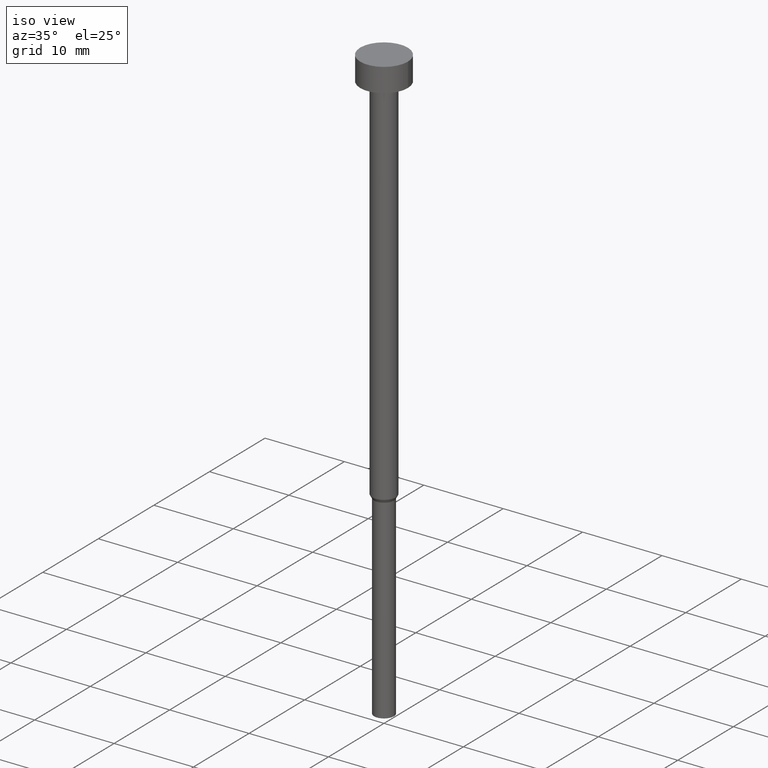
[diagram: clean part render]
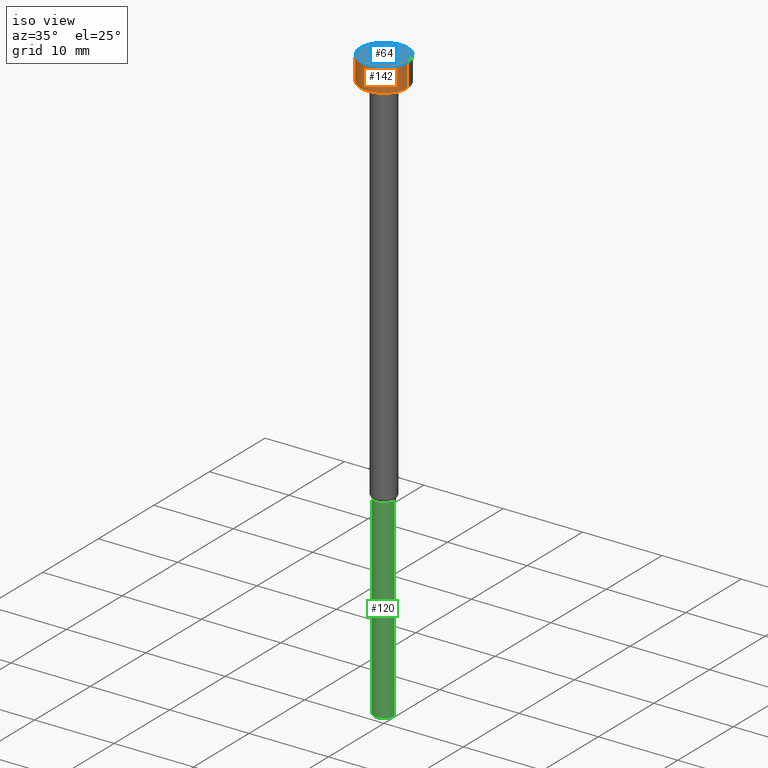
[diagram: same view with three faces highlighted in distinct colors, each labeled with its STEP entity id]
A machine part, iso view with three faces highlighted in distinct colors.
Their STEP definitions:

[orange] entity #142 — the highlighted cylindrical surface (edge-blend (fillet) strip) has radius 3 mm, axis along (-0, -0, 1).
#2 = EDGE_CURVE ( 'NONE', #63, #101, #345, .T. ) ;
#14 = CARTESIAN_POINT ( 'NONE',  ( 0.000000000000000000, 0.000000000000000000, -3.000000000000000444 ) ) ;
#22 = AXIS2_PLACEMENT_3D ( 'NONE', #144, #115, #258 ) ;
#46 = AXIS2_PLACEMENT_3D ( 'NONE', #311, #169, #316 ) ;
#50 = CARTESIAN_POINT ( 'NONE',  ( -3.000000000000000000, 3.673940397442059868E-16, 0.000000000000000000 ) ) ;
#61 = VECTOR ( 'NONE', #351, 1000.000000000000000 ) ;
#63 = VERTEX_POINT ( 'NONE', #203 ) ;
#74 = LINE ( 'NONE', #50, #282 ) ;
#77 = DIRECTION ( 'NONE',  ( -0.000000000000000000, -0.000000000000000000, 1.000000000000000000 ) ) ;
#82 = EDGE_CURVE ( 'NONE', #336, #63, #74, .T. ) ;
#83 = VERTEX_POINT ( 'NONE', #318 ) ;
#89 = ORIENTED_EDGE ( 'NONE', *, *, #212, .T. ) ;
#101 = VERTEX_POINT ( 'NONE', #334 ) ;
#113 = ORIENTED_EDGE ( 'NONE', *, *, #82, .F. ) ;
#115 = DIRECTION ( 'NONE',  ( -0.000000000000000000, -0.000000000000000000, 1.000000000000000000 ) ) ;
#141 = EDGE_LOOP ( 'NONE', ( #113, #340, #89, #313 ) ) ;
#142 = ADVANCED_FACE ( 'NONE', ( #256 ), #214, .T. ) ;
#144 = CARTESIAN_POINT ( 'NONE',  ( 0.000000000000000000, 0.000000000000000000, 0.000000000000000000 ) ) ;
#152 = LINE ( 'NONE', #347, #61 ) ;
#169 = DIRECTION ( 'NONE',  ( -0.000000000000000000, -0.000000000000000000, 1.000000000000000000 ) ) ;
#172 = EDGE_CURVE ( 'NONE', #336, #83, #300, .T. ) ;
#203 = CARTESIAN_POINT ( 'NONE',  ( -3.000000000000000000, 3.673940397442059868E-16, -3.673940397442059868E-16 ) ) ;
#212 = EDGE_CURVE ( 'NONE', #83, #101, #152, .T. ) ;
#214 = CYLINDRICAL_SURFACE ( 'NONE', #22, 3.000000000000000000 ) ;
#222 = CARTESIAN_POINT ( 'NONE',  ( -3.000000000000000000, 3.673940397442059868E-16, -3.000000000000000444 ) ) ;
#223 = AXIS2_PLACEMENT_3D ( 'NONE', #14, #295, #270 ) ;
#256 = FACE_OUTER_BOUND ( 'NONE', #141, .T. ) ;
#258 = DIRECTION ( 'NONE',  ( 1.000000000000000000, 0.000000000000000000, 0.000000000000000000 ) ) ;
#270 = DIRECTION ( 'NONE',  ( 1.000000000000000000, 0.000000000000000000, 0.000000000000000000 ) ) ;
#282 = VECTOR ( 'NONE', #77, 1000.000000000000000 ) ;
#295 = DIRECTION ( 'NONE',  ( -0.000000000000000000, -0.000000000000000000, 1.000000000000000000 ) ) ;
#300 = CIRCLE ( 'NONE', #223, 3.000000000000000000 ) ;
#311 = CARTESIAN_POINT ( 'NONE',  ( 0.000000000000000000, 0.000000000000000000, -3.673940397442059868E-16 ) ) ;
#313 = ORIENTED_EDGE ( 'NONE', *, *, #2, .F. ) ;
#316 = DIRECTION ( 'NONE',  ( 1.000000000000000000, 0.000000000000000000, 0.000000000000000000 ) ) ;
#318 = CARTESIAN_POINT ( 'NONE',  ( 3.000000000000000000, 0.000000000000000000, -3.000000000000000444 ) ) ;
#334 = CARTESIAN_POINT ( 'NONE',  ( 3.000000000000000000, 0.000000000000000000, -3.673940397442059868E-16 ) ) ;
#336 = VERTEX_POINT ( 'NONE', #222 ) ;
#340 = ORIENTED_EDGE ( 'NONE', *, *, #172, .T. ) ;
#345 = CIRCLE ( 'NONE', #46, 3.000000000000000000 ) ;
#347 = CARTESIAN_POINT ( 'NONE',  ( 3.000000000000000000, 0.000000000000000000, 0.000000000000000000 ) ) ;
#351 = DIRECTION ( 'NONE',  ( -0.000000000000000000, -0.000000000000000000, 1.000000000000000000 ) ) ;

[blue] entity #64 — the highlighted planar face has unit normal (0, -0, 1).
#2 = EDGE_CURVE ( 'NONE', #63, #101, #345, .T. ) ;
#9 = ORIENTED_EDGE ( 'NONE', *, *, #2, .T. ) ;
#28 = DIRECTION ( 'NONE',  ( 0.000000000000000000, -0.000000000000000000, 1.000000000000000000 ) ) ;
#46 = AXIS2_PLACEMENT_3D ( 'NONE', #311, #169, #316 ) ;
#63 = VERTEX_POINT ( 'NONE', #203 ) ;
#64 = ADVANCED_FACE ( 'NONE', ( #299 ), #321, .T. ) ;
#66 = CIRCLE ( 'NONE', #90, 3.000000000000000000 ) ;
#72 = AXIS2_PLACEMENT_3D ( 'NONE', #298, #28, #130 ) ;
#78 = EDGE_CURVE ( 'NONE', #101, #63, #66, .T. ) ;
#90 = AXIS2_PLACEMENT_3D ( 'NONE', #100, #247, #98 ) ;
#98 = DIRECTION ( 'NONE',  ( 1.000000000000000000, 0.000000000000000000, 0.000000000000000000 ) ) ;
#100 = CARTESIAN_POINT ( 'NONE',  ( 0.000000000000000000, 0.000000000000000000, -3.673940397442059868E-16 ) ) ;
#101 = VERTEX_POINT ( 'NONE', #334 ) ;
#119 = ORIENTED_EDGE ( 'NONE', *, *, #78, .T. ) ;
#130 = DIRECTION ( 'NONE',  ( 1.000000000000000000, 0.000000000000000000, 0.000000000000000000 ) ) ;
#169 = DIRECTION ( 'NONE',  ( -0.000000000000000000, -0.000000000000000000, 1.000000000000000000 ) ) ;
#203 = CARTESIAN_POINT ( 'NONE',  ( -3.000000000000000000, 3.673940397442059868E-16, -3.673940397442059868E-16 ) ) ;
#247 = DIRECTION ( 'NONE',  ( -0.000000000000000000, -0.000000000000000000, 1.000000000000000000 ) ) ;
#298 = CARTESIAN_POINT ( 'NONE',  ( 0.000000000000000000, 0.000000000000000000, -1.836970198721029934E-16 ) ) ;
#299 = FACE_OUTER_BOUND ( 'NONE', #329, .T. ) ;
#311 = CARTESIAN_POINT ( 'NONE',  ( 0.000000000000000000, 0.000000000000000000, -3.673940397442059868E-16 ) ) ;
#316 = DIRECTION ( 'NONE',  ( 1.000000000000000000, 0.000000000000000000, 0.000000000000000000 ) ) ;
#321 = PLANE ( 'NONE',  #72 ) ;
#329 = EDGE_LOOP ( 'NONE', ( #119, #9 ) ) ;
#334 = CARTESIAN_POINT ( 'NONE',  ( 3.000000000000000000, 0.000000000000000000, -3.673940397442059868E-16 ) ) ;
#345 = CIRCLE ( 'NONE', #46, 3.000000000000000000 ) ;

[green] entity #120 — the highlighted cylindrical surface (edge-blend (fillet) strip) has radius 1.25 mm, axis along (-0, -0, 1).
#1 = CARTESIAN_POINT ( 'NONE',  ( 0.000000000000000000, 0.000000000000000000, 0.000000000000000000 ) ) ;
#4 = AXIS2_PLACEMENT_3D ( 'NONE', #23, #322, #355 ) ;
#8 = LINE ( 'NONE', #164, #312 ) ;
#19 = CARTESIAN_POINT ( 'NONE',  ( 0.000000000000000000, 0.000000000000000000, -50.43301270189221697 ) ) ;
#23 = CARTESIAN_POINT ( 'NONE',  ( 0.000000000000000000, 0.000000000000000000, -75.00000000000000000 ) ) ;
#36 = AXIS2_PLACEMENT_3D ( 'NONE', #19, #208, #124 ) ;
#48 = CARTESIAN_POINT ( 'NONE',  ( -1.250000000000000000, 1.530808498934191571E-16, 0.000000000000000000 ) ) ;
#59 = CARTESIAN_POINT ( 'NONE',  ( -1.250000000000000000, 1.530808498934191571E-16, -50.43301270189221697 ) ) ;
#73 = CARTESIAN_POINT ( 'NONE',  ( -1.250000000000000000, 1.530808498934191571E-16, -75.00000000000000000 ) ) ;
#85 = CIRCLE ( 'NONE', #4, 1.250000000000000000 ) ;
#91 = VECTOR ( 'NONE', #265, 1000.000000000000000 ) ;
#106 = DIRECTION ( 'NONE',  ( -0.000000000000000000, -0.000000000000000000, 1.000000000000000000 ) ) ;
#120 = ADVANCED_FACE ( 'NONE', ( #188 ), #305, .T. ) ;
#124 = DIRECTION ( 'NONE',  ( 1.000000000000000000, 0.000000000000000000, 0.000000000000000000 ) ) ;
#133 = VERTEX_POINT ( 'NONE', #59 ) ;
#146 = ORIENTED_EDGE ( 'NONE', *, *, #344, .T. ) ;
#156 = CARTESIAN_POINT ( 'NONE',  ( 1.250000000000000000, 0.000000000000000000, -50.43301270189221697 ) ) ;
#164 = CARTESIAN_POINT ( 'NONE',  ( 1.250000000000000000, 0.000000000000000000, 0.000000000000000000 ) ) ;
#175 = ORIENTED_EDGE ( 'NONE', *, *, #207, .F. ) ;
#188 = FACE_OUTER_BOUND ( 'NONE', #342, .T. ) ;
#192 = VERTEX_POINT ( 'NONE', #156 ) ;
#202 = EDGE_CURVE ( 'NONE', #287, #230, #85, .T. ) ;
#207 = EDGE_CURVE ( 'NONE', #287, #133, #239, .T. ) ;
#208 = DIRECTION ( 'NONE',  ( -0.000000000000000000, -0.000000000000000000, 1.000000000000000000 ) ) ;
#210 = AXIS2_PLACEMENT_3D ( 'NONE', #1, #106, #217 ) ;
#217 = DIRECTION ( 'NONE',  ( 1.000000000000000000, 0.000000000000000000, 0.000000000000000000 ) ) ;
#230 = VERTEX_POINT ( 'NONE', #240 ) ;
#239 = LINE ( 'NONE', #48, #91 ) ;
#240 = CARTESIAN_POINT ( 'NONE',  ( 1.250000000000000000, 0.000000000000000000, -75.00000000000000000 ) ) ;
#259 = ORIENTED_EDGE ( 'NONE', *, *, #202, .T. ) ;
#264 = EDGE_CURVE ( 'NONE', #133, #192, #346, .T. ) ;
#265 = DIRECTION ( 'NONE',  ( -0.000000000000000000, -0.000000000000000000, 1.000000000000000000 ) ) ;
#287 = VERTEX_POINT ( 'NONE', #73 ) ;
#305 = CYLINDRICAL_SURFACE ( 'NONE', #210, 1.250000000000000000 ) ;
#306 = ORIENTED_EDGE ( 'NONE', *, *, #264, .F. ) ;
#312 = VECTOR ( 'NONE', #330, 1000.000000000000000 ) ;
#322 = DIRECTION ( 'NONE',  ( -0.000000000000000000, -0.000000000000000000, 1.000000000000000000 ) ) ;
#330 = DIRECTION ( 'NONE',  ( -0.000000000000000000, -0.000000000000000000, 1.000000000000000000 ) ) ;
#342 = EDGE_LOOP ( 'NONE', ( #175, #259, #146, #306 ) ) ;
#344 = EDGE_CURVE ( 'NONE', #230, #192, #8, .T. ) ;
#346 = CIRCLE ( 'NONE', #36, 1.250000000000000000 ) ;
#355 = DIRECTION ( 'NONE',  ( 1.000000000000000000, 0.000000000000000000, 0.000000000000000000 ) ) ;